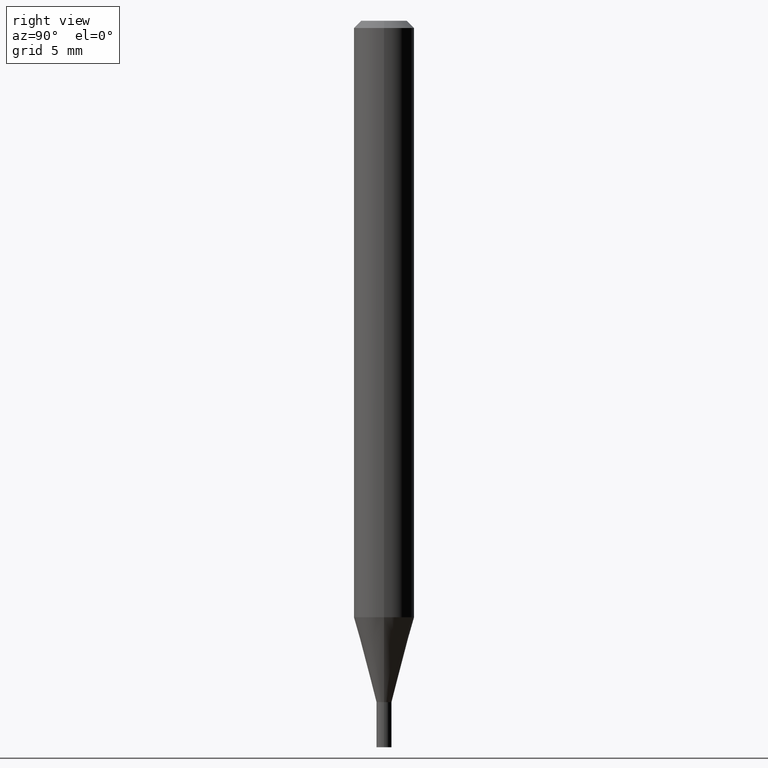
[diagram: clean part render]
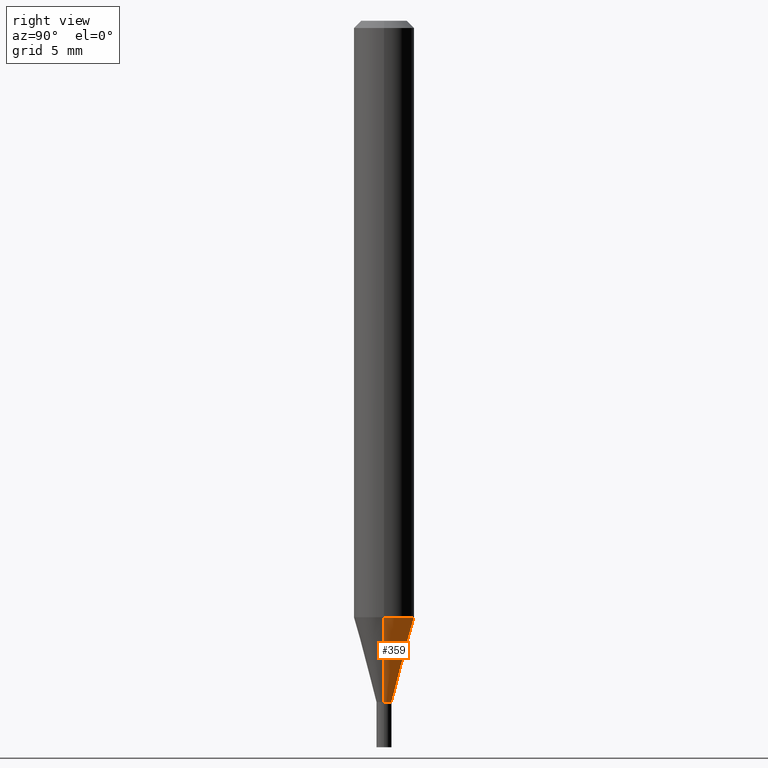
[diagram: same view with one face highlighted and labeled with its STEP entity id]
A machine part, right view. The second image highlights one B-rep face of the part: STEP entity #359.
In plain terms, the highlighted conical surface has half-angle 15 deg.
Its self-contained STEP definition (entity closure, byte-faithful):
#5 = LINE ( 'NONE', #111, #224 ) ;
#7 = DIRECTION ( 'NONE',  ( 1.000000000000000000, -6.982962677686275388E-15, 0.000000000000000000 ) ) ;
#12 = DIRECTION ( 'NONE',  ( -2.445468806185136597E-29, 3.491481338843145583E-15, 1.000000000000000000 ) ) ;
#18 = CARTESIAN_POINT ( 'NONE',  ( -0.01550000000000019765, -4.329188511675198905E-15, -1.407000000000000028 ) ) ;
#40 = AXIS2_PLACEMENT_3D ( 'NONE', #188, #12, #145 ) ;
#80 = ORIENTED_EDGE ( 'NONE', *, *, #388, .F. ) ;
#89 = ORIENTED_EDGE ( 'NONE', *, *, #404, .F. ) ;
#111 = CARTESIAN_POINT ( 'NONE',  ( -0.01550000000000019765, -4.802380119709489081E-15, -1.407000000000000028 ) ) ;
#122 = ORIENTED_EDGE ( 'NONE', *, *, #297, .T. ) ;
#125 = DIRECTION ( 'NONE',  ( -2.445468806185136597E-29, 3.491481338843145583E-15, 1.000000000000000000 ) ) ;
#134 = DIRECTION ( 'NONE',  ( 0.2588190451025213501, 1.565188264969621968E-15, 0.9659258262890682012 ) ) ;
#145 = DIRECTION ( 'NONE',  ( 1.000000000000000000, -6.982962677686262766E-15, 0.000000000000000000 ) ) ;
#149 = CARTESIAN_POINT ( 'NONE',  ( 0.06250000000000001388, -4.736521280846363803E-15, -1.231593612044264097 ) ) ;
#156 = ORIENTED_EDGE ( 'NONE', *, *, #285, .T. ) ;
#160 = CARTESIAN_POINT ( 'NONE',  ( 0.01550000000000019765, -5.020750165256443846E-15, -1.407000000000000028 ) ) ;
#162 = CARTESIAN_POINT ( 'NONE',  ( 3.440774610302487541E-29, -4.912514243752305891E-15, -1.407000000000000028 ) ) ;
#167 = VERTEX_POINT ( 'NONE', #160 ) ;
#185 = CARTESIAN_POINT ( 'NONE',  ( 3.440774610302487541E-29, -4.912514243752305891E-15, -1.407000000000000028 ) ) ;
#188 = CARTESIAN_POINT ( 'NONE',  ( 3.011823760151126772E-29, -4.300086113490972134E-15, -1.231593612044264097 ) ) ;
#200 = FACE_OUTER_BOUND ( 'NONE', #265, .T. ) ;
#224 = VECTOR ( 'NONE', #435, 39.37007874015747433 ) ;
#235 = VERTEX_POINT ( 'NONE', #18 ) ;
#250 = DIRECTION ( 'NONE',  ( -2.445468806185136597E-29, 3.491481338843145583E-15, 1.000000000000000000 ) ) ;
#251 = AXIS2_PLACEMENT_3D ( 'NONE', #185, #250, #7 ) ;
#265 = EDGE_LOOP ( 'NONE', ( #122, #156, #80, #89 ) ) ;
#272 = AXIS2_PLACEMENT_3D ( 'NONE', #162, #125, #301 ) ;
#285 = EDGE_CURVE ( 'NONE', #235, #452, #5, .T. ) ;
#287 = CONICAL_SURFACE ( 'NONE', #272, 0.01550000000000019765, 0.2617993877991500740 ) ;
#292 = VERTEX_POINT ( 'NONE', #149 ) ;
#297 = EDGE_CURVE ( 'NONE', #167, #235, #363, .T. ) ;
#301 = DIRECTION ( 'NONE',  ( 1.000000000000000000, -6.982962677686275388E-15, 0.000000000000000000 ) ) ;
#322 = CIRCLE ( 'NONE', #40, 0.06250000000000000000 ) ;
#359 = ADVANCED_FACE ( 'NONE', ( #200 ), #287, .T. ) ;
#363 = CIRCLE ( 'NONE', #251, 0.01550000000000019765 ) ;
#378 = LINE ( 'NONE', #459, #407 ) ;
#388 = EDGE_CURVE ( 'NONE', #292, #452, #322, .T. ) ;
#404 = EDGE_CURVE ( 'NONE', #167, #292, #378, .T. ) ;
#407 = VECTOR ( 'NONE', #134, 39.37007874015747433 ) ;
#430 = CARTESIAN_POINT ( 'NONE',  ( -0.06250000000000001388, -3.855996903640909518E-15, -1.231593612044264097 ) ) ;
#435 = DIRECTION ( 'NONE',  ( -0.2588190451025213501, 5.211531920934551042E-15, 0.9659258262890682012 ) ) ;
#452 = VERTEX_POINT ( 'NONE', #430 ) ;
#459 = CARTESIAN_POINT ( 'NONE',  ( 0.01550000000000019765, -5.020750165256443846E-15, -1.407000000000000028 ) ) ;